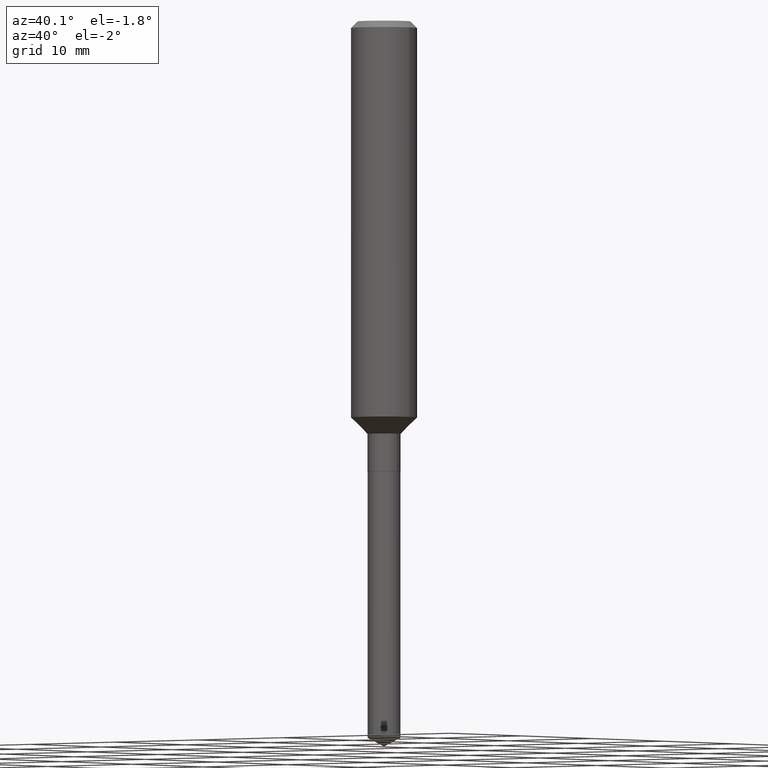
[diagram: clean part render]
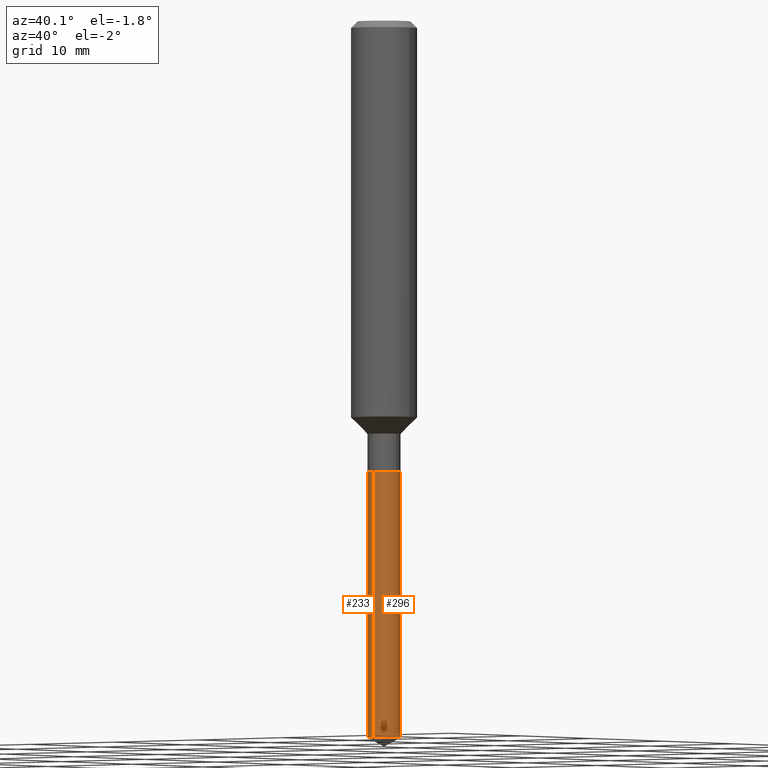
[diagram: same view with one multi-face feature highlighted, each face labeled with its STEP entity id]
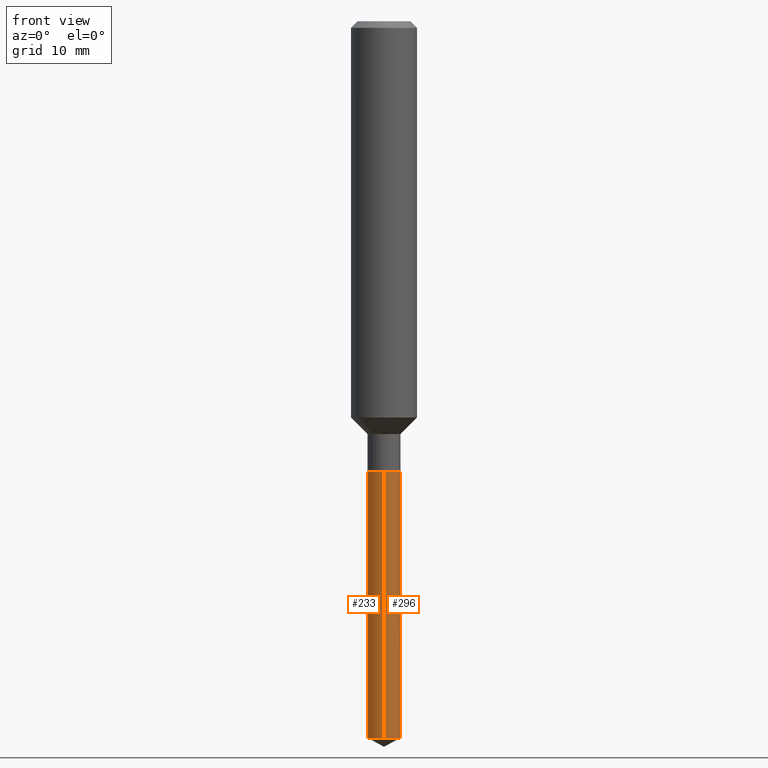
[diagram: same view with one multi-face feature highlighted, each face labeled with its STEP entity id]
A machine part, auxiliary view. The highlighted faces form ONE feature: a constant-radius fillet chain: 2 tangent blend faces with common blend radius 1.4999 mm. The faces share edges in the B-rep.
A second angle (front view) of the same feature is appended — it is thin or edge-on in the first view.
Their STEP definitions:
[1] entity #233 (Cylinder):
#4 = EDGE_LOOP ( 'NONE', ( #123, #307, #44, #301 ) ) ;
#5 = EDGE_CURVE ( 'NONE', #10, #429, #19, .T. ) ;
#9 = CARTESIAN_POINT ( 'NONE',  ( 6.272038925202559547E-29, -8.970497442954319382E-15, -2.567002558060389461 ) ) ;
#10 = VERTEX_POINT ( 'NONE', #14 ) ;
#14 = CARTESIAN_POINT ( 'NONE',  ( -4.123439461173112196E-16, -0.05905000000000895644, -2.567002558060389461 ) ) ;
#19 = LINE ( 'NONE', #284, #180 ) ;
#24 = CARTESIAN_POINT ( 'NONE',  ( 4.195754854664020595E-16, 0.05904999999999435700, -1.614099999999999868 ) ) ;
#34 = AXIS2_PLACEMENT_3D ( 'NONE', #189, #419, #450 ) ;
#44 = ORIENTED_EDGE ( 'NONE', *, *, #5, .T. ) ;
#53 = CIRCLE ( 'NONE', #34, 0.05904999999999998445 ) ;
#66 = VECTOR ( 'NONE', #483, 39.37007874015748143 ) ;
#98 = CYLINDRICAL_SURFACE ( 'NONE', #474, 0.05904999999999998445 ) ;
#120 = VERTEX_POINT ( 'NONE', #24 ) ;
#123 = ORIENTED_EDGE ( 'NONE', *, *, #224, .F. ) ;
#127 = CIRCLE ( 'NONE', #351, 0.05904999999999999138 ) ;
#139 = FACE_OUTER_BOUND ( 'NONE', #4, .T. ) ;
#147 = CARTESIAN_POINT ( 'NONE',  ( 4.195754854663784430E-16, 0.05904999999999435006, -1.614099999999999868 ) ) ;
#179 = CARTESIAN_POINT ( 'NONE',  ( 3.947231200063428045E-29, -5.635600029026720279E-15, -1.614099999999999646 ) ) ;
#180 = VECTOR ( 'NONE', #475, 39.37007874015748143 ) ;
#187 = CARTESIAN_POINT ( 'NONE',  ( 4.195754854664017144E-16, 0.05904999999999101939, -2.567002558060389461 ) ) ;
#189 = CARTESIAN_POINT ( 'NONE',  ( 3.947231200063428045E-29, -5.635600029026720279E-15, -1.614099999999999646 ) ) ;
#224 = EDGE_CURVE ( 'NONE', #299, #120, #256, .T. ) ;
#233 = ADVANCED_FACE ( 'NONE', ( #139 ), #98, .T. ) ;
#248 = DIRECTION ( 'NONE',  ( -2.439711915425245800E-29, 3.499725534073182891E-15, 1.000000000000000000 ) ) ;
#256 = LINE ( 'NONE', #147, #66 ) ;
#284 = CARTESIAN_POINT ( 'NONE',  ( -4.123439461173343924E-16, -0.05905000000000561883, -1.614099999999999424 ) ) ;
#299 = VERTEX_POINT ( 'NONE', #187 ) ;
#301 = ORIENTED_EDGE ( 'NONE', *, *, #312, .F. ) ;
#307 = ORIENTED_EDGE ( 'NONE', *, *, #397, .T. ) ;
#312 = EDGE_CURVE ( 'NONE', #120, #429, #53, .T. ) ;
#351 = AXIS2_PLACEMENT_3D ( 'NONE', #9, #408, #368 ) ;
#368 = DIRECTION ( 'NONE',  ( -6.982962677686265922E-15, -1.000000000000000000, 0.000000000000000000 ) ) ;
#384 = CARTESIAN_POINT ( 'NONE',  ( -4.123439461173343924E-16, -0.05905000000000561883, -1.614099999999999424 ) ) ;
#395 = DIRECTION ( 'NONE',  ( -6.982962677686265922E-15, -1.000000000000000000, 4.626330217890370914E-15 ) ) ;
#397 = EDGE_CURVE ( 'NONE', #299, #10, #127, .T. ) ;
#408 = DIRECTION ( 'NONE',  ( -2.439711915425245800E-29, 3.499725534073182891E-15, 1.000000000000000000 ) ) ;
#419 = DIRECTION ( 'NONE',  ( -2.439711915425245800E-29, 3.499725534073182891E-15, 1.000000000000000000 ) ) ;
#429 = VERTEX_POINT ( 'NONE', #384 ) ;
#450 = DIRECTION ( 'NONE',  ( -6.982962677686265922E-15, -1.000000000000000000, 4.626330217890370914E-15 ) ) ;
#474 = AXIS2_PLACEMENT_3D ( 'NONE', #179, #248, #395 ) ;
#475 = DIRECTION ( 'NONE',  ( -2.439711915425246080E-29, 3.499725534073182497E-15, 1.000000000000000000 ) ) ;
#483 = DIRECTION ( 'NONE',  ( -2.439711915425246080E-29, 3.499725534073182497E-15, 1.000000000000000000 ) ) ;
[2] entity #296 (Cylinder):
#3 = DIRECTION ( 'NONE',  ( -6.982962677686265922E-15, -1.000000000000000000, 4.626330217890370914E-15 ) ) ;
#5 = EDGE_CURVE ( 'NONE', #10, #429, #19, .T. ) ;
#6 = AXIS2_PLACEMENT_3D ( 'NONE', #293, #178, #486 ) ;
#10 = VERTEX_POINT ( 'NONE', #14 ) ;
#14 = CARTESIAN_POINT ( 'NONE',  ( -4.123439461173112196E-16, -0.05905000000000895644, -2.567002558060389461 ) ) ;
#19 = LINE ( 'NONE', #284, #180 ) ;
#24 = CARTESIAN_POINT ( 'NONE',  ( 4.195754854664020595E-16, 0.05904999999999435700, -1.614099999999999868 ) ) ;
#32 = CARTESIAN_POINT ( 'NONE',  ( 3.947231200063428045E-29, -5.635600029026720279E-15, -1.614099999999999646 ) ) ;
#42 = CIRCLE ( 'NONE', #73, 0.05904999999999998445 ) ;
#66 = VECTOR ( 'NONE', #483, 39.37007874015748143 ) ;
#69 = EDGE_CURVE ( 'NONE', #429, #120, #42, .T. ) ;
#73 = AXIS2_PLACEMENT_3D ( 'NONE', #241, #352, #317 ) ;
#75 = CYLINDRICAL_SURFACE ( 'NONE', #203, 0.05904999999999998445 ) ;
#92 = EDGE_LOOP ( 'NONE', ( #154, #116, #149, #385 ) ) ;
#113 = FACE_OUTER_BOUND ( 'NONE', #92, .T. ) ;
#116 = ORIENTED_EDGE ( 'NONE', *, *, #224, .T. ) ;
#120 = VERTEX_POINT ( 'NONE', #24 ) ;
#147 = CARTESIAN_POINT ( 'NONE',  ( 4.195754854663784430E-16, 0.05904999999999435006, -1.614099999999999868 ) ) ;
#149 = ORIENTED_EDGE ( 'NONE', *, *, #69, .F. ) ;
#154 = ORIENTED_EDGE ( 'NONE', *, *, #218, .T. ) ;
#178 = DIRECTION ( 'NONE',  ( -2.439711915425245800E-29, 3.499725534073182891E-15, 1.000000000000000000 ) ) ;
#180 = VECTOR ( 'NONE', #475, 39.37007874015748143 ) ;
#187 = CARTESIAN_POINT ( 'NONE',  ( 4.195754854664017144E-16, 0.05904999999999101939, -2.567002558060389461 ) ) ;
#203 = AXIS2_PLACEMENT_3D ( 'NONE', #32, #261, #3 ) ;
#218 = EDGE_CURVE ( 'NONE', #10, #299, #220, .T. ) ;
#220 = CIRCLE ( 'NONE', #6, 0.05904999999999999138 ) ;
#224 = EDGE_CURVE ( 'NONE', #299, #120, #256, .T. ) ;
#241 = CARTESIAN_POINT ( 'NONE',  ( 3.947231200063428045E-29, -5.635600029026720279E-15, -1.614099999999999646 ) ) ;
#256 = LINE ( 'NONE', #147, #66 ) ;
#261 = DIRECTION ( 'NONE',  ( -2.439711915425245800E-29, 3.499725534073182891E-15, 1.000000000000000000 ) ) ;
#284 = CARTESIAN_POINT ( 'NONE',  ( -4.123439461173343924E-16, -0.05905000000000561883, -1.614099999999999424 ) ) ;
#293 = CARTESIAN_POINT ( 'NONE',  ( 6.272038925202559547E-29, -8.970497442954319382E-15, -2.567002558060389461 ) ) ;
#296 = ADVANCED_FACE ( 'NONE', ( #113 ), #75, .T. ) ;
#299 = VERTEX_POINT ( 'NONE', #187 ) ;
#317 = DIRECTION ( 'NONE',  ( -6.982962677686265922E-15, -1.000000000000000000, 4.626330217890370914E-15 ) ) ;
#352 = DIRECTION ( 'NONE',  ( -2.439711915425245800E-29, 3.499725534073182891E-15, 1.000000000000000000 ) ) ;
#384 = CARTESIAN_POINT ( 'NONE',  ( -4.123439461173343924E-16, -0.05905000000000561883, -1.614099999999999424 ) ) ;
#385 = ORIENTED_EDGE ( 'NONE', *, *, #5, .F. ) ;
#429 = VERTEX_POINT ( 'NONE', #384 ) ;
#475 = DIRECTION ( 'NONE',  ( -2.439711915425246080E-29, 3.499725534073182497E-15, 1.000000000000000000 ) ) ;
#483 = DIRECTION ( 'NONE',  ( -2.439711915425246080E-29, 3.499725534073182497E-15, 1.000000000000000000 ) ) ;
#486 = DIRECTION ( 'NONE',  ( -6.982962677686265922E-15, -1.000000000000000000, 0.000000000000000000 ) ) ;